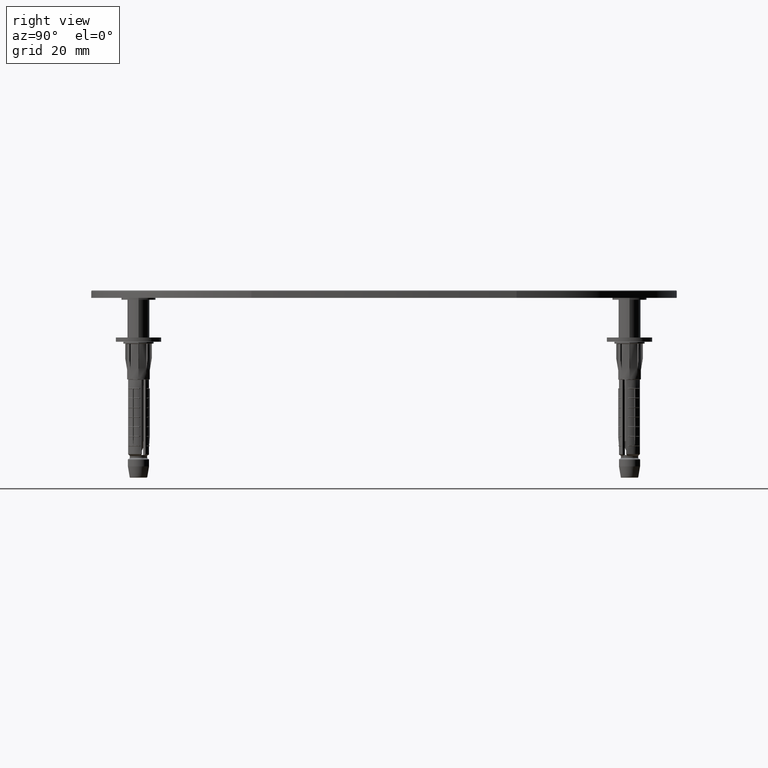
[diagram: clean part render]
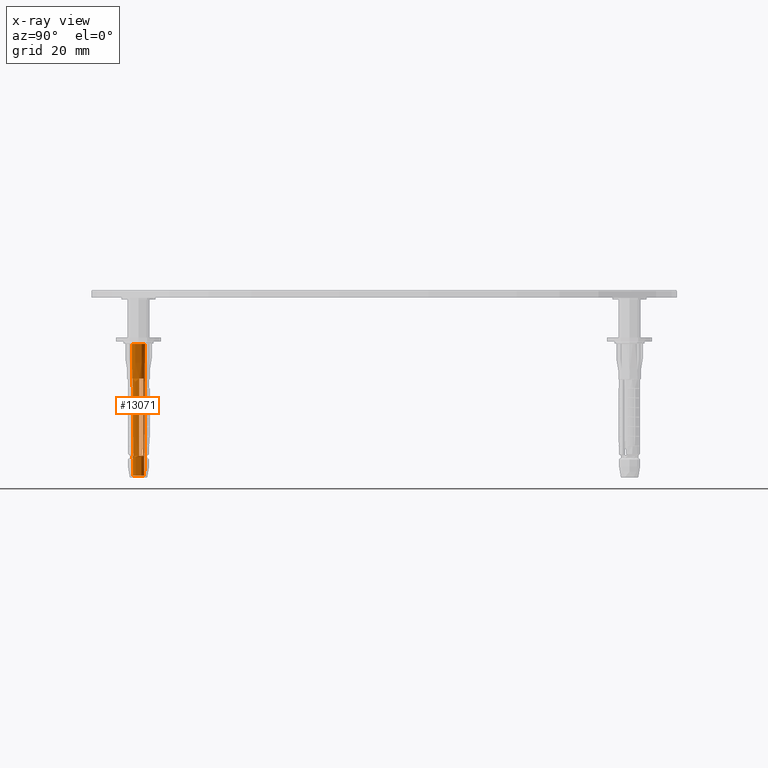
[diagram: x-ray — body ghosted, one internal face saturated and labeled with its STEP entity id]
A machine part, right view, then the same camera in x-ray: the body is ghosted and one INTERNAL B-rep face — a face not visible from any outside direction — is saturated and labeled: STEP entity #13071.
In plain terms, the highlighted conical surface has half-angle 0.401 deg.
Its self-contained STEP definition (entity closure, byte-faithful):
#403 = CARTESIAN_POINT ( 'NONE',  ( 0.000000000000000000, -1.500000000000000000, -35.75000000000000000 ) ) ;
#424 = CARTESIAN_POINT ( 'NONE',  ( 0.9195041943490761538, 1.278257141286266441, -25.08173108936442475 ) ) ;
#484 = EDGE_LOOP ( 'NONE', ( #38425, #11752, #33930, #31752 ) ) ;
#545 = DIRECTION ( 'NONE',  ( -1.776356839400250465E-15, -1.000000000000000000, 0.000000000000000000 ) ) ;
#700 = VECTOR ( 'NONE', #35443, 1000.000000000000000 ) ;
#1249 = AXIS2_PLACEMENT_3D ( 'NONE', #36441, #3325, #545 ) ;
#1881 = DIRECTION ( 'NONE',  ( 5.329070518200751394E-15, -1.000000000000000000, 0.000000000000000000 ) ) ;
#2088 = VERTEX_POINT ( 'NONE', #12611 ) ;
#2262 = CARTESIAN_POINT ( 'NONE',  ( 1.554500871815585716, 0.1509422293871669485, -26.91482140879552176 ) ) ;
#3325 = DIRECTION ( 'NONE',  ( -0.000000000000000000, -1.712792726080124458E-19, -1.000000000000000000 ) ) ;
#3742 = B_SPLINE_CURVE_WITH_KNOTS ( 'NONE', 3,
 ( #13576, #34889, #16881, #37921, #37398, #25827, #25562, #28826, #34371, #31597, #10808, #34627, #31861 ),
 .UNSPECIFIED., .F., .F.,
 ( 4, 3, 3, 3, 4 ),
 ( 0.000000000000000000, 0.0005000000000004143925, 0.002500000000050580685, 0.01050000000305951336, 0.02050057427464647627 ),
 .UNSPECIFIED. ) ;
#4854 = CIRCLE ( 'NONE', #21422, 1.538473763699323094 ) ;
#5227 = CARTESIAN_POINT ( 'NONE',  ( 0.6451642119605712766, -1.396661970985268786, -30.24825179099680739 ) ) ;
#5304 = EDGE_CURVE ( 'NONE', #8088, #35364, #28576, .T. ) ;
#5409 = CARTESIAN_POINT ( 'NONE',  ( 0.000000000000000000, -5.588095458173432147E-19, -0.6030269733816054911 ) ) ;
#7477 = DIRECTION ( 'NONE',  ( 0.000000000000000000, -1.000000000000000000, 0.000000000000000000 ) ) ;
#7768 = ORIENTED_EDGE ( 'NONE', *, *, #34102, .T. ) ;
#8088 = VERTEX_POINT ( 'NONE', #29060 ) ;
#8096 = CARTESIAN_POINT ( 'NONE',  ( 1.666526010379683731, 0.2083499647477308481, -10.08157587699704649 ) ) ;
#8487 = CARTESIAN_POINT ( 'NONE',  ( 1.616773400997852717, 0.1827488338190830786, -17.58136715940376860 ) ) ;
#8572 = LINE ( 'NONE', #27393, #18974 ) ;
#9465 = CARTESIAN_POINT ( 'NONE',  ( 0.9027115561000608190, 1.267324053805257256, -27.74832246951416082 ) ) ;
#9581 = CARTESIAN_POINT ( 'NONE',  ( 0.9948955139307371631, 1.327005492811487386, -13.08168407891747087 ) ) ;
#9930 = DIRECTION ( 'NONE',  ( 0.000000000000000000, 6.803593328596413297E-18, 1.000000000000000000 ) ) ;
#10804 = CARTESIAN_POINT ( 'NONE',  ( 0.000000000000000000, -6.123233995736444329E-18, -35.75000000000000000 ) ) ;
#10808 = CARTESIAN_POINT ( 'NONE',  ( 0.6505592292629955864, -1.500253304582922942, -16.41511596006032647 ) ) ;
#11524 = DIRECTION ( 'NONE',  ( 0.000000000000000000, -1.000000000000000000, 0.000000000000000000 ) ) ;
#11540 = EDGE_LOOP ( 'NONE', ( #35680, #29563, #26854, #21371, #22537, #39023, #12716, #7768 ) ) ;
#11576 = VERTEX_POINT ( 'NONE', #5227 ) ;
#11752 = ORIENTED_EDGE ( 'NONE', *, *, #30307, .T. ) ;
#11985 = EDGE_CURVE ( 'NONE', #35307, #13275, #14476, .T. ) ;
#12279 = VERTEX_POINT ( 'NONE', #19050 ) ;
#12611 = CARTESIAN_POINT ( 'NONE',  ( 0.6529438566827530099, -1.549908977365538787, -9.748251790996814492 ) ) ;
#12716 = ORIENTED_EDGE ( 'NONE', *, *, #17549, .T. ) ;
#12761 = CARTESIAN_POINT ( 'NONE',  ( 1.015788619610740406, 1.340420455815019229, -9.748251790996814492 ) ) ;
#13071 = ADVANCED_FACE ( 'NONE', ( #38627, #31544 ), #37679, .F. ) ;
#13275 = VERTEX_POINT ( 'NONE', #14741 ) ;
#13498 = CARTESIAN_POINT ( 'NONE',  ( 1.015788619610740406, 1.340420455815019229, -9.748251790996814492 ) ) ;
#13576 = CARTESIAN_POINT ( 'NONE',  ( 0.6451642119605712766, -1.396661970985268786, -30.24825179099680739 ) ) ;
#14476 = B_SPLINE_CURVE_WITH_KNOTS ( 'NONE', 3,
 ( #38392, #20516, #8096, #38260, #23272, #26294, #26549, #35352, #8487, #32194, #29300, #2262, #17355 ),
 .UNSPECIFIED., .F., .F.,
 ( 4, 3, 3, 3, 4 ),
 ( 0.000000000000000000, 0.0005000000000002581589, 0.002500000000033156256, 0.01050000000240637263, 0.02050057427441492885 ),
 .UNSPECIFIED. ) ;
#14535 = CARTESIAN_POINT ( 'NONE',  ( 1.836970198721029934E-16, 1.500000000000000000, -35.75000000000000000 ) ) ;
#14741 = CARTESIAN_POINT ( 'NONE',  ( 1.532126853353173113, 0.1396023883222116124, -30.24825179099680739 ) ) ;
#14983 = EDGE_CURVE ( 'NONE', #2088, #27556, #31012, .T. ) ;
#15201 = CARTESIAN_POINT ( 'NONE',  ( 0.000000000000000000, -1.745783028158170547, -0.6030269733816054911 ) ) ;
#16354 = CARTESIAN_POINT ( 'NONE',  ( 0.000000000000000000, -1.681830407055966203, -9.748251790996814492 ) ) ;
#16726 = VERTEX_POINT ( 'NONE', #36637 ) ;
#16881 = CARTESIAN_POINT ( 'NONE',  ( 0.6453007124366823000, -1.399166297412006710, -29.91492789322138179 ) ) ;
#16918 = EDGE_CURVE ( 'NONE', #12279, #16726, #8572, .T. ) ;
#17355 = CARTESIAN_POINT ( 'NONE',  ( 1.532126853353173113, 0.1396023883222116124, -30.24825179099680739 ) ) ;
#17549 = EDGE_CURVE ( 'NONE', #27556, #21646, #38245, .T. ) ;
#18102 = CARTESIAN_POINT ( 'NONE',  ( 0.000000000000000000, -5.180898564425945676E-18, -30.24825179099682870 ) ) ;
#18728 = EDGE_CURVE ( 'NONE', #16726, #11576, #37721, .T. ) ;
#18971 = CARTESIAN_POINT ( 'NONE',  ( 0.9739778592488662623, 1.313527471499640331, -16.41511596006032647 ) ) ;
#18974 = VECTOR ( 'NONE', #32908, 1000.000000000000000 ) ;
#19050 = CARTESIAN_POINT ( 'NONE',  ( 0.000000000000000000, -1.501736026510467337, -35.50174820900318196 ) ) ;
#19662 = DIRECTION ( 'NONE',  ( 0.000000000000000000, 1.712792726080124458E-19, 1.000000000000000000 ) ) ;
#19750 = CIRCLE ( 'NONE', #28772, 1.501736026510467337 ) ;
#19880 = EDGE_CURVE ( 'NONE', #11576, #2088, #3742, .T. ) ;
#20013 = DIRECTION ( 'NONE',  ( -0.000000000000000000, -1.712792726080124458E-19, -1.000000000000000000 ) ) ;
#20334 = VERTEX_POINT ( 'NONE', #34672 ) ;
#20516 = CARTESIAN_POINT ( 'NONE',  ( 1.667629327064346967, 0.2089192303041016996, -9.914913834507210311 ) ) ;
#21371 = ORIENTED_EDGE ( 'NONE', *, *, #18728, .T. ) ;
#21422 = AXIS2_PLACEMENT_3D ( 'NONE', #18102, #26476, #23086 ) ;
#21646 = VERTEX_POINT ( 'NONE', #15201 ) ;
#21828 = DIRECTION ( 'NONE',  ( 0.000000000000000000, -0.006992836012750656971, 0.9999755498233438011 ) ) ;
#21967 = CARTESIAN_POINT ( 'NONE',  ( 2.137967597439677086E-16, 1.745783028158170547, -0.6030269733816054911 ) ) ;
#22537 = ORIENTED_EDGE ( 'NONE', *, *, #19880, .T. ) ;
#22705 = EDGE_CURVE ( 'NONE', #8088, #12279, #19750, .T. ) ;
#22895 = AXIS2_PLACEMENT_3D ( 'NONE', #27963, #9930, #28090 ) ;
#23086 = DIRECTION ( 'NONE',  ( 1.776356839400250465E-15, 1.000000000000000000, 0.000000000000000000 ) ) ;
#23272 = CARTESIAN_POINT ( 'NONE',  ( 1.661008584994464243, 0.2055037660457863791, -10.91488608431727592 ) ) ;
#25015 = CARTESIAN_POINT ( 'NONE',  ( 0.8985133965385434518, 1.264590781935484465, -28.41497031443465815 ) ) ;
#25562 = CARTESIAN_POINT ( 'NONE',  ( 0.6461790473723990624, -1.415433166775063034, -27.74832246951416082 ) ) ;
#25827 = CARTESIAN_POINT ( 'NONE',  ( 0.6459110442784851136, -1.410430818010761866, -28.41497031443465815 ) ) ;
#26294 = CARTESIAN_POINT ( 'NONE',  ( 1.656591950557989357, 0.2032272201278825796, -11.58153423375303603 ) ) ;
#26476 = DIRECTION ( 'NONE',  ( 0.000000000000000000, 6.803593328596413297E-18, 1.000000000000000000 ) ) ;
#26545 = DIRECTION ( 'NONE',  ( 0.000000000000000000, 1.712792726080124458E-19, 1.000000000000000000 ) ) ;
#26549 = CARTESIAN_POINT ( 'NONE',  ( 1.652172560847955829, 0.2009510954124484050, -12.24818236635587709 ) ) ;
#26854 = ORIENTED_EDGE ( 'NONE', *, *, #16918, .T. ) ;
#26889 = EDGE_CURVE ( 'NONE', #13275, #20334, #4854, .T. ) ;
#27393 = CARTESIAN_POINT ( 'NONE',  ( 0.000000000000000000, -1.500000000000000000, -35.75000000000000000 ) ) ;
#27556 = VERTEX_POINT ( 'NONE', #16354 ) ;
#27872 = CARTESIAN_POINT ( 'NONE',  ( 0.8869626413926015029, 1.257059582663057284, -30.24825179099680739 ) ) ;
#27963 = CARTESIAN_POINT ( 'NONE',  ( 0.000000000000000000, -5.180898564425945676E-18, -30.24825179099682870 ) ) ;
#27994 = CARTESIAN_POINT ( 'NONE',  ( 0.8890632014594700427, 1.258429958756367206, -29.91492789322138179 ) ) ;
#28090 = DIRECTION ( 'NONE',  ( 0.000000000000000000, 1.000000000000000000, 0.000000000000000000 ) ) ;
#28125 = AXIS2_PLACEMENT_3D ( 'NONE', #5409, #26545, #11524 ) ;
#28576 = LINE ( 'NONE', #14535, #700 ) ;
#28772 = AXIS2_PLACEMENT_3D ( 'NONE', #36704, #33683, #33173 ) ;
#28826 = CARTESIAN_POINT ( 'NONE',  ( 0.6472510597482427075, -1.435442561835776898, -25.08173108936442475 ) ) ;
#29060 = CARTESIAN_POINT ( 'NONE',  ( 1.988531907734992781E-16, 1.501736026510467337, -35.50174820900318196 ) ) ;
#29300 = CARTESIAN_POINT ( 'NONE',  ( 1.576789889387851584, 0.1622946023761522027, -23.58139049783190799 ) ) ;
#29350 = CIRCLE ( 'NONE', #28125, 1.745783028158170325 ) ;
#29563 = ORIENTED_EDGE ( 'NONE', *, *, #22705, .T. ) ;
#29573 = VERTEX_POINT ( 'NONE', #13498 ) ;
#29756 = B_SPLINE_CURVE_WITH_KNOTS ( 'NONE', 3,
 ( #27872, #33682, #27994, #30894, #36818, #25015, #9465, #424, #30763, #30391, #18971, #9581, #12761 ),
 .UNSPECIFIED., .F., .F.,
 ( 4, 3, 3, 3, 4 ),
 ( 0.000000000000000000, 0.0005000000000004143925, 0.002500000000050580685, 0.01050000000305951336, 0.02050057427464647627 ),
 .UNSPECIFIED. ) ;
#30307 = EDGE_CURVE ( 'NONE', #20334, #29573, #29756, .T. ) ;
#30332 = EDGE_CURVE ( 'NONE', #29573, #35307, #37555, .T. ) ;
#30391 = CARTESIAN_POINT ( 'NONE',  ( 0.9530325249256442754, 1.299978861172466083, -19.74854737969049623 ) ) ;
#30763 = CARTESIAN_POINT ( 'NONE',  ( 0.9362772196692720206, 1.289140595316773386, -22.41513938176526111 ) ) ;
#30894 = CARTESIAN_POINT ( 'NONE',  ( 0.8901133631146178615, 1.259114848031045009, -29.74826594235975463 ) ) ;
#31012 = CIRCLE ( 'NONE', #32372, 1.681830407055966647 ) ;
#31544 = FACE_BOUND ( 'NONE', #484, .T. ) ;
#31597 = CARTESIAN_POINT ( 'NONE',  ( 0.6492984556952973163, -1.475339807804667336, -19.74854737969049623 ) ) ;
#31752 = ORIENTED_EDGE ( 'NONE', *, *, #11985, .T. ) ;
#31861 = CARTESIAN_POINT ( 'NONE',  ( 0.6529438566827530099, -1.549908977365538787, -9.748251790996814492 ) ) ;
#32194 = CARTESIAN_POINT ( 'NONE',  ( 1.599003518319578987, 0.1736583543094187554, -20.24795912438024814 ) ) ;
#32372 = AXIS2_PLACEMENT_3D ( 'NONE', #38013, #20013, #1881 ) ;
#32908 = DIRECTION ( 'NONE',  ( 0.000000000000000000, -0.006992836012750656971, 0.9999755498233438011 ) ) ;
#33173 = DIRECTION ( 'NONE',  ( 0.000000000000000000, -1.000000000000000000, 0.000000000000000000 ) ) ;
#33529 = VECTOR ( 'NONE', #21828, 1000.000000000000000 ) ;
#33592 = AXIS2_PLACEMENT_3D ( 'NONE', #10804, #19662, #7477 ) ;
#33682 = CARTESIAN_POINT ( 'NONE',  ( 0.8880129610593886502, 1.257744870701107631, -30.08158984277008585 ) ) ;
#33683 = DIRECTION ( 'NONE',  ( -0.000000000000000000, -1.712792726080124458E-19, -1.000000000000000000 ) ) ;
#33930 = ORIENTED_EDGE ( 'NONE', *, *, #30332, .T. ) ;
#34102 = EDGE_CURVE ( 'NONE', #21646, #35364, #29350, .T. ) ;
#34371 = CARTESIAN_POINT ( 'NONE',  ( 0.6482898947594840644, -1.455410154876639606, -22.41513938176526111 ) ) ;
#34627 = CARTESIAN_POINT ( 'NONE',  ( 0.6517727107708675138, -1.525107535580936924, -13.08168407891747087 ) ) ;
#34672 = CARTESIAN_POINT ( 'NONE',  ( 0.8869626413926015029, 1.257059582663057284, -30.24825179099680739 ) ) ;
#34889 = CARTESIAN_POINT ( 'NONE',  ( 0.6452325289770389771, -1.397914218517826157, -30.08158984277008585 ) ) ;
#35307 = VERTEX_POINT ( 'NONE', #36685 ) ;
#35352 = CARTESIAN_POINT ( 'NONE',  ( 1.634495002005344366, 0.1918465965494355885, -14.91477489714101168 ) ) ;
#35364 = VERTEX_POINT ( 'NONE', #21967 ) ;
#35443 = DIRECTION ( 'NONE',  ( 8.563754239977431897E-19, 0.006992836012750656971, 0.9999755498233438011 ) ) ;
#35680 = ORIENTED_EDGE ( 'NONE', *, *, #5304, .F. ) ;
#36441 = CARTESIAN_POINT ( 'NONE',  ( 0.000000000000000000, 3.433350391091640607E-16, -9.748251790996814492 ) ) ;
#36637 = CARTESIAN_POINT ( 'NONE',  ( 0.000000000000000000, -1.538473763699322872, -30.24825179099682870 ) ) ;
#36685 = CARTESIAN_POINT ( 'NONE',  ( 1.668732476293493638, 0.2094885215505198628, -9.748251790996814492 ) ) ;
#36704 = CARTESIAN_POINT ( 'NONE',  ( 0.000000000000000000, -6.080713609550873326E-18, -35.50174820900318196 ) ) ;
#36818 = CARTESIAN_POINT ( 'NONE',  ( 0.8943140097352603179, 1.261854405129790191, -29.08161813890516356 ) ) ;
#37398 = CARTESIAN_POINT ( 'NONE',  ( 0.6456409658520689820, -1.405425853955954318, -29.08161813890516356 ) ) ;
#37555 = CIRCLE ( 'NONE', #1249, 1.681830407055966425 ) ;
#37679 = CONICAL_SURFACE ( 'NONE', #33592, 1.500000000000000000, 0.006992893005333328423 ) ;
#37721 = CIRCLE ( 'NONE', #22895, 1.538473763699323094 ) ;
#37921 = CARTESIAN_POINT ( 'NONE',  ( 0.6453687631197588814, -1.400418208720784152, -29.74826594235975463 ) ) ;
#38013 = CARTESIAN_POINT ( 'NONE',  ( 0.000000000000000000, 3.433350391091640607E-16, -9.748251790996814492 ) ) ;
#38245 = LINE ( 'NONE', #403, #33529 ) ;
#38260 = CARTESIAN_POINT ( 'NONE',  ( 1.665422525302646894, 0.2077807250073455680, -10.24823791846003118 ) ) ;
#38392 = CARTESIAN_POINT ( 'NONE',  ( 1.668732476293493638, 0.2094885215505198628, -9.748251790996814492 ) ) ;
#38425 = ORIENTED_EDGE ( 'NONE', *, *, #26889, .T. ) ;
#38627 = FACE_OUTER_BOUND ( 'NONE', #11540, .T. ) ;
#39023 = ORIENTED_EDGE ( 'NONE', *, *, #14983, .T. ) ;